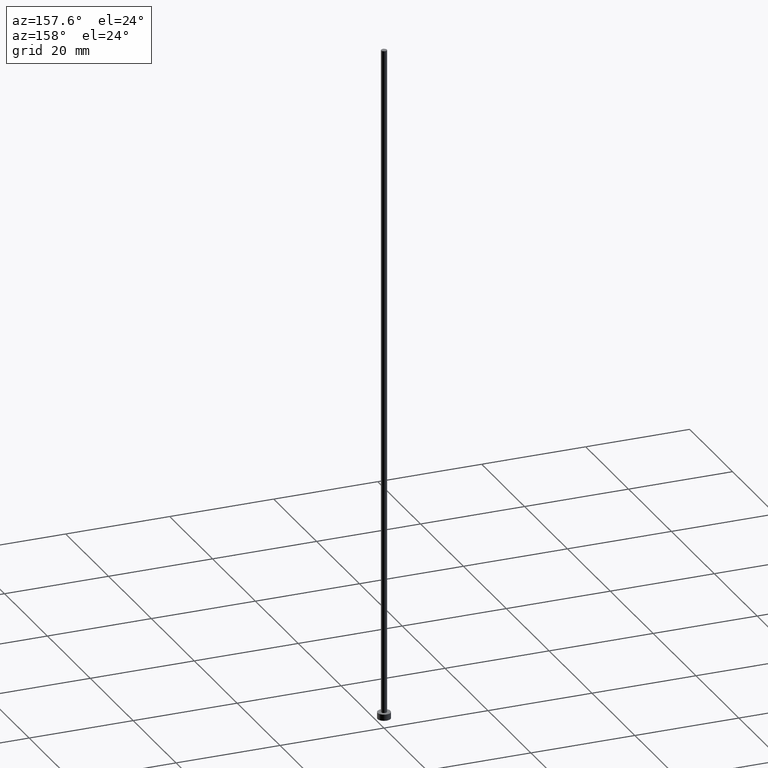
[diagram: clean part render]
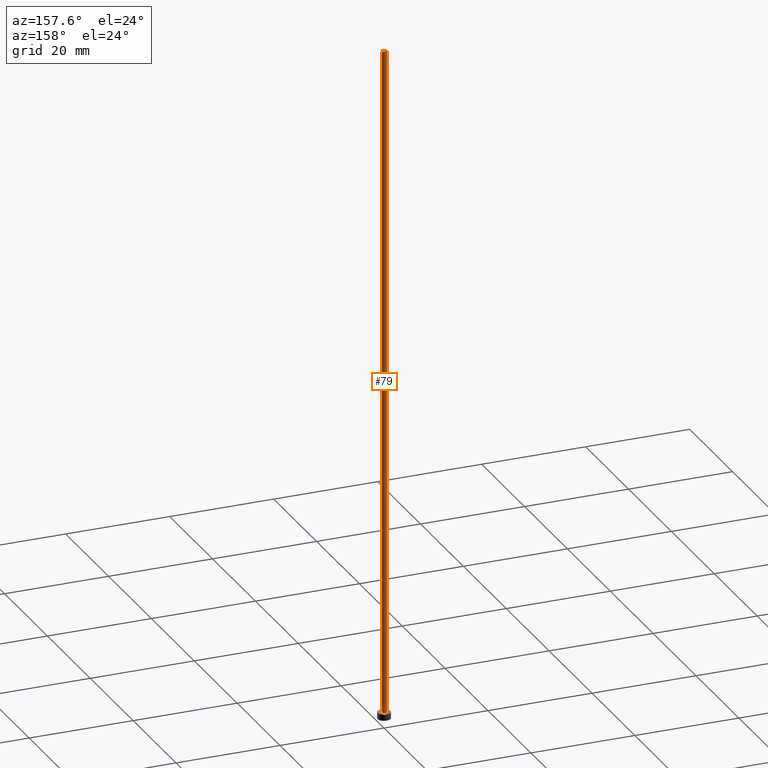
[diagram: same view with one face highlighted and labeled with its STEP entity id]
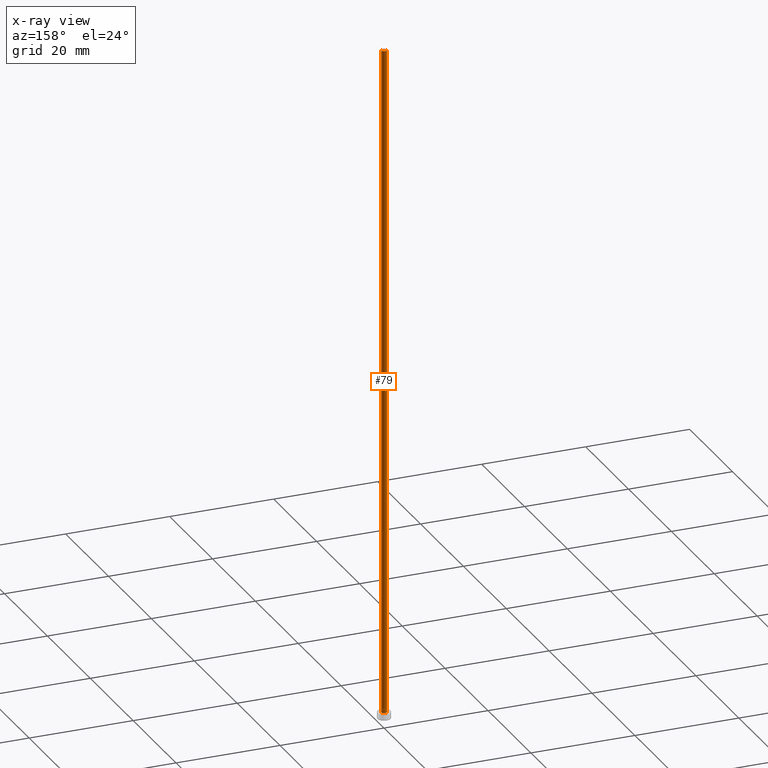
[diagram: x-ray of the same camera — body ghosted, the highlighted face saturated]
A machine part, auxiliary view. The second image highlights one B-rep face of the part: STEP entity #79.
The next image is the same camera in x-ray: the body ghosted, the highlighted face saturated — about 0% of this face is hidden behind the body in this view.
In plain terms, the highlighted cylindrical surface (edge-blend (fillet) strip) has radius 0.55 mm, axis along (-0, -0, -1).
Its self-contained STEP definition (entity closure, byte-faithful):
#6 = ORIENTED_EDGE ( 'NONE', *, *, #172, .T. ) ;
#10 = DIRECTION ( 'NONE',  ( 1.000000000000000000, 0.000000000000000000, 0.000000000000000000 ) ) ;
#12 = CARTESIAN_POINT ( 'NONE',  ( -0.5500000000000000444, 0.000000000000000000, 130.0000000000000000 ) ) ;
#22 = LINE ( 'NONE', #57, #95 ) ;
#29 = VERTEX_POINT ( 'NONE', #112 ) ;
#32 = DIRECTION ( 'NONE',  ( 0.000000000000000000, 0.000000000000000000, 1.000000000000000000 ) ) ;
#33 = DIRECTION ( 'NONE',  ( -1.000000000000000000, 0.000000000000000000, 0.000000000000000000 ) ) ;
#46 = VERTEX_POINT ( 'NONE', #248 ) ;
#47 = VERTEX_POINT ( 'NONE', #12 ) ;
#50 = CYLINDRICAL_SURFACE ( 'NONE', #98, 0.5500000000000000444 ) ;
#51 = AXIS2_PLACEMENT_3D ( 'NONE', #54, #32, #10 ) ;
#54 = CARTESIAN_POINT ( 'NONE',  ( 0.000000000000000000, 0.000000000000000000, 130.0000000000000000 ) ) ;
#57 = CARTESIAN_POINT ( 'NONE',  ( -0.5500000000000000444, 0.000000000000000000, 130.0000000000000000 ) ) ;
#66 = EDGE_LOOP ( 'NONE', ( #164, #127, #6, #243 ) ) ;
#73 = CARTESIAN_POINT ( 'NONE',  ( 0.5500000000000000444, 6.735557395310442516E-17, 130.0000000000000000 ) ) ;
#74 = DIRECTION ( 'NONE',  ( -0.000000000000000000, -0.000000000000000000, -1.000000000000000000 ) ) ;
#79 = ADVANCED_FACE ( 'NONE', ( #130 ), #50, .T. ) ;
#84 = VECTOR ( 'NONE', #74, 1000.000000000000000 ) ;
#95 = VECTOR ( 'NONE', #235, 1000.000000000000000 ) ;
#98 = AXIS2_PLACEMENT_3D ( 'NONE', #211, #188, #33 ) ;
#100 = EDGE_CURVE ( 'NONE', #29, #47, #201, .T. ) ;
#106 = CIRCLE ( 'NONE', #250, 0.5500000000000000444 ) ;
#110 = DIRECTION ( 'NONE',  ( 0.000000000000000000, 0.000000000000000000, 1.000000000000000000 ) ) ;
#111 = DIRECTION ( 'NONE',  ( 1.000000000000000000, 0.000000000000000000, 0.000000000000000000 ) ) ;
#112 = CARTESIAN_POINT ( 'NONE',  ( 0.5500000000000000444, 6.735557395310442516E-17, 130.0000000000000000 ) ) ;
#113 = CARTESIAN_POINT ( 'NONE',  ( 0.5500000000000000444, 6.735557395310442516E-17, 1.199999999999999956 ) ) ;
#127 = ORIENTED_EDGE ( 'NONE', *, *, #135, .T. ) ;
#130 = FACE_OUTER_BOUND ( 'NONE', #66, .T. ) ;
#134 = LINE ( 'NONE', #73, #84 ) ;
#135 = EDGE_CURVE ( 'NONE', #29, #204, #134, .T. ) ;
#164 = ORIENTED_EDGE ( 'NONE', *, *, #100, .F. ) ;
#172 = EDGE_CURVE ( 'NONE', #204, #46, #106, .T. ) ;
#188 = DIRECTION ( 'NONE',  ( -0.000000000000000000, -0.000000000000000000, -1.000000000000000000 ) ) ;
#201 = CIRCLE ( 'NONE', #51, 0.5500000000000000444 ) ;
#204 = VERTEX_POINT ( 'NONE', #113 ) ;
#207 = CARTESIAN_POINT ( 'NONE',  ( 0.000000000000000000, 0.000000000000000000, 1.199999999999999956 ) ) ;
#211 = CARTESIAN_POINT ( 'NONE',  ( 0.000000000000000000, 0.000000000000000000, 130.0000000000000000 ) ) ;
#235 = DIRECTION ( 'NONE',  ( -0.000000000000000000, -0.000000000000000000, -1.000000000000000000 ) ) ;
#241 = EDGE_CURVE ( 'NONE', #47, #46, #22, .T. ) ;
#243 = ORIENTED_EDGE ( 'NONE', *, *, #241, .F. ) ;
#248 = CARTESIAN_POINT ( 'NONE',  ( -0.5500000000000000444, 0.000000000000000000, 1.199999999999999956 ) ) ;
#250 = AXIS2_PLACEMENT_3D ( 'NONE', #207, #110, #111 ) ;